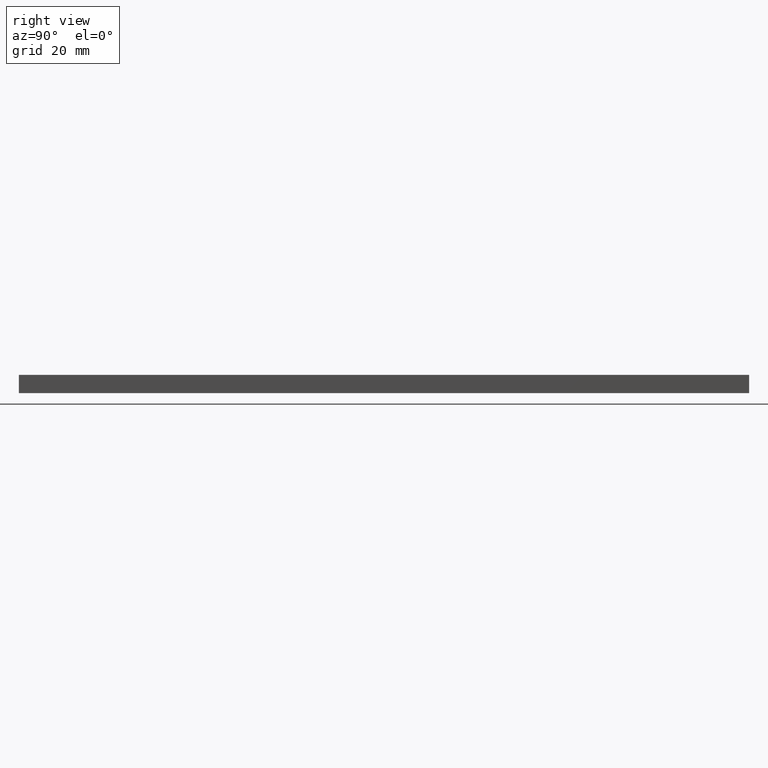
[diagram: clean part render]
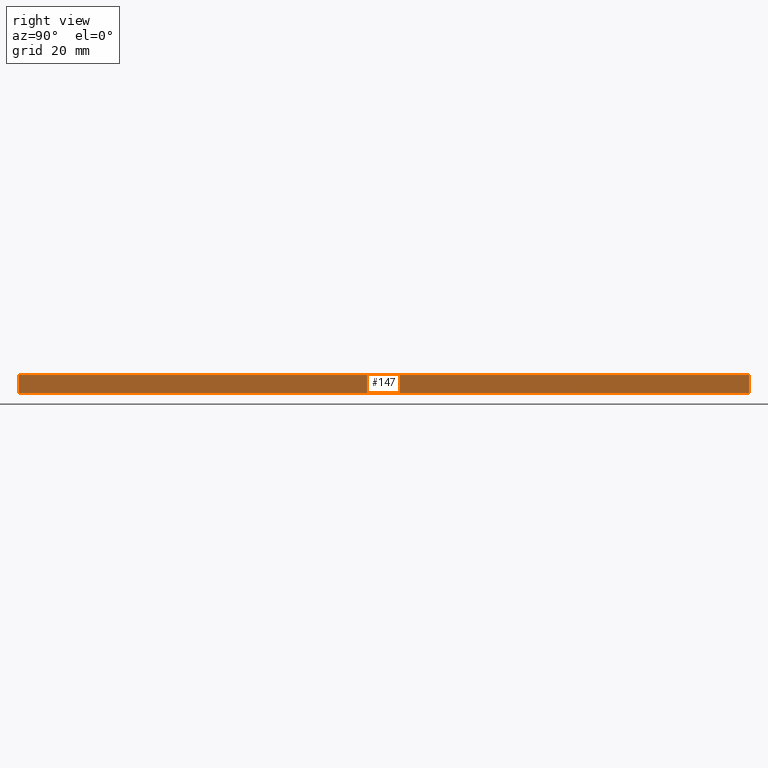
[diagram: same view with one face highlighted and labeled with its STEP entity id]
A machine part, right view. The second image highlights one B-rep face of the part: STEP entity #147.
In plain terms, the highlighted planar face has unit normal (-1, 0, 0).
Its self-contained STEP definition (entity closure, byte-faithful):
#1 = CARTESIAN_POINT ( 'NONE',  ( 10.00000000000000000, 1000.000000000000000, 5.000000000000000000 ) ) ;
#6 = LINE ( 'NONE', #1, #53 ) ;
#11 = DIRECTION ( 'NONE',  ( 0.0000000000000000000, 0.0000000000000000000, -1.000000000000000000 ) ) ;
#18 = VERTEX_POINT ( 'NONE', #106 ) ;
#20 = LINE ( 'NONE', #33, #207 ) ;
#30 = EDGE_CURVE ( 'NONE', #149, #216, #160, .T. ) ;
#31 = DIRECTION ( 'NONE',  ( 0.0000000000000000000, 0.0000000000000000000, -1.000000000000000000 ) ) ;
#33 = CARTESIAN_POINT ( 'NONE',  ( 10.00000000000000000, 200.0000000000000000, 5.000000000000000000 ) ) ;
#53 = VECTOR ( 'NONE', #222, 1000.000000000000000 ) ;
#58 = ORIENTED_EDGE ( 'NONE', *, *, #79, .T. ) ;
#79 = EDGE_CURVE ( 'NONE', #18, #216, #198, .T. ) ;
#90 = EDGE_LOOP ( 'NONE', ( #58, #226, #127, #225 ) ) ;
#92 = FACE_OUTER_BOUND ( 'NONE', #90, .T. ) ;
#95 = VECTOR ( 'NONE', #11, 1000.000000000000000 ) ;
#106 = CARTESIAN_POINT ( 'NONE',  ( 10.00000000000000000, 0.0000000000000000000, 5.000000000000000000 ) ) ;
#107 = CARTESIAN_POINT ( 'NONE',  ( 10.00000000000000000, 1000.000000000000000, 5.000000000000000000 ) ) ;
#114 = CARTESIAN_POINT ( 'NONE',  ( 10.00000000000000000, 200.0000000000000000, 0.0000000000000000000 ) ) ;
#127 = ORIENTED_EDGE ( 'NONE', *, *, #223, .F. ) ;
#132 = PLANE ( 'NONE',  #134 ) ;
#133 = EDGE_CURVE ( 'NONE', #182, #18, #6, .T. ) ;
#134 = AXIS2_PLACEMENT_3D ( 'NONE', #107, #162, #199 ) ;
#140 = DIRECTION ( 'NONE',  ( 0.0000000000000000000, -1.000000000000000000, 0.0000000000000000000 ) ) ;
#147 = ADVANCED_FACE ( 'NONE', ( #92 ), #132, .F. ) ;
#149 = VERTEX_POINT ( 'NONE', #114 ) ;
#152 = VECTOR ( 'NONE', #140, 1000.000000000000000 ) ;
#160 = LINE ( 'NONE', #221, #152 ) ;
#162 = DIRECTION ( 'NONE',  ( -1.000000000000000000, 0.0000000000000000000, 0.0000000000000000000 ) ) ;
#177 = CARTESIAN_POINT ( 'NONE',  ( 10.00000000000000000, 0.0000000000000000000, 5.000000000000000000 ) ) ;
#180 = CARTESIAN_POINT ( 'NONE',  ( 10.00000000000000000, 200.0000000000000000, 5.000000000000000000 ) ) ;
#182 = VERTEX_POINT ( 'NONE', #180 ) ;
#198 = LINE ( 'NONE', #177, #95 ) ;
#199 = DIRECTION ( 'NONE',  ( 0.0000000000000000000, 0.0000000000000000000, 1.000000000000000000 ) ) ;
#207 = VECTOR ( 'NONE', #31, 1000.000000000000000 ) ;
#216 = VERTEX_POINT ( 'NONE', #236 ) ;
#221 = CARTESIAN_POINT ( 'NONE',  ( 10.00000000000000000, 1000.000000000000000, 0.0000000000000000000 ) ) ;
#222 = DIRECTION ( 'NONE',  ( 0.0000000000000000000, -1.000000000000000000, 0.0000000000000000000 ) ) ;
#223 = EDGE_CURVE ( 'NONE', #182, #149, #20, .T. ) ;
#225 = ORIENTED_EDGE ( 'NONE', *, *, #133, .T. ) ;
#226 = ORIENTED_EDGE ( 'NONE', *, *, #30, .F. ) ;
#236 = CARTESIAN_POINT ( 'NONE',  ( 10.00000000000000000, 0.0000000000000000000, 0.0000000000000000000 ) ) ;